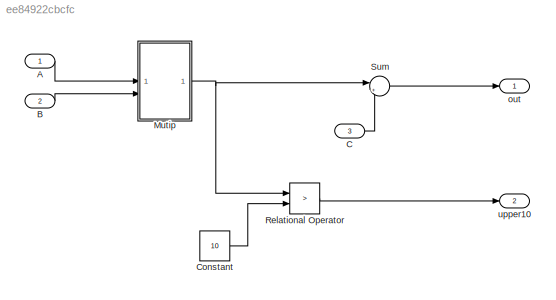
MODEL slx_ee84922cbcfc
KIND model
CONFIG AbsTol = auto
CONFIG EnableMultiTasking = off
CONFIG FixedStep = auto
CONFIG MaxStep = auto
CONFIG MinStep = auto
CONFIG RelTol = 1e-3
CONFIG SampleTimeConstraint = Unconstrained
CONFIG SolverName = VariableStepAuto
CONFIG StartTime = 0.0
CONFIG StopTime = 10.0
BLOCK [Inport] A
BLOCK [Inport] B
  Port = 2
BLOCK [Inport] C
  Port = 3
BLOCK [Constant] Constant
  Value = 10
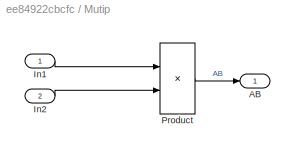
BLOCK [SubSystem] Mutip
BLOCK [Outport] Mutip/AB
BLOCK [Inport] Mutip/In1
BLOCK [Inport] Mutip/In2
  Port = 2
BLOCK [Product] Mutip/Product
BLOCK [RelationalOperator] Relational Operator
  InputSameDT = off
  Operator = >
  OutDataTypeStr = boolean
  RndMeth = Simplest
BLOCK [Sum] Sum
  Inputs = |++
BLOCK [Outport] out
BLOCK [Outport] upper10
  Port = 2
LINE A:1 -> Mutip:1
LINE B:1 -> Mutip:2
LINE C:1 -> Sum:2
LINE Constant:1 -> Relational Operator:2
LINE Mutip/In1:1 -> Mutip/Product:1
LINE Mutip/In2:1 -> Mutip/Product:2
LINE Mutip/Product:1 -> Mutip/AB:1
NET Mutip:1 -> Relational Operator:1, Sum:1
LINE Relational Operator:1 -> upper10:1
LINE Sum:1 -> out:1
note: NET lines group one-source signal fan-out (src -> all destinations, sorted); 1:1 wires keep LINE
